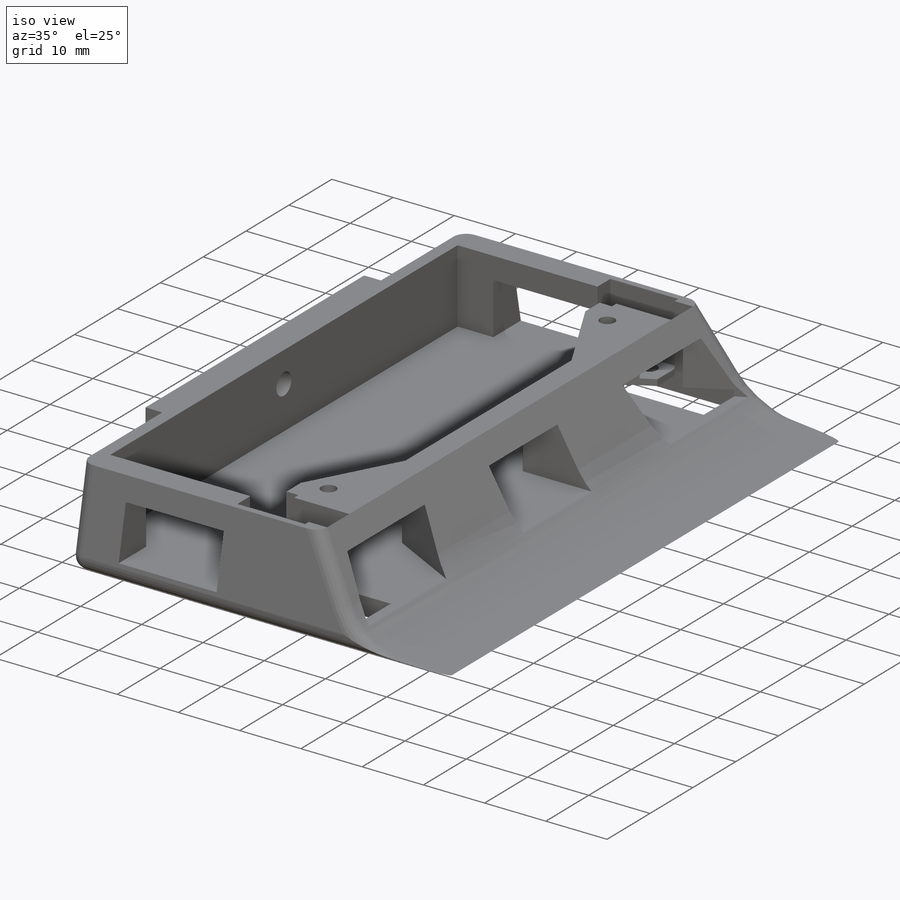
[diagram: iso view]
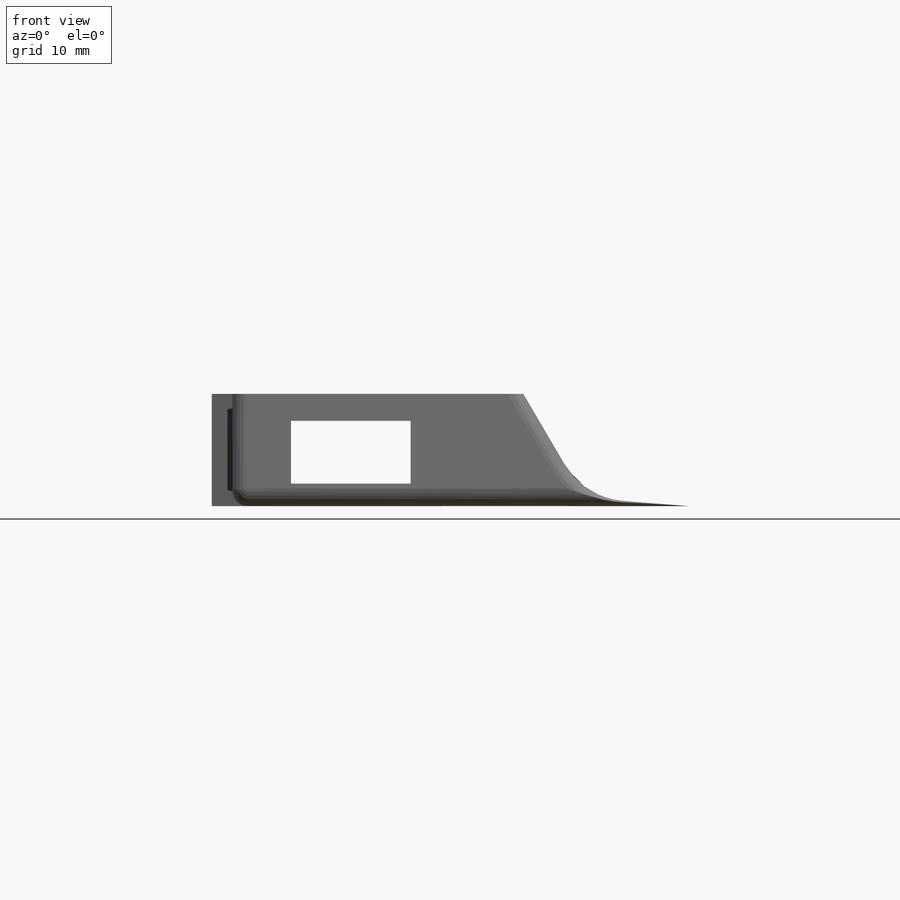
[diagram: front view]
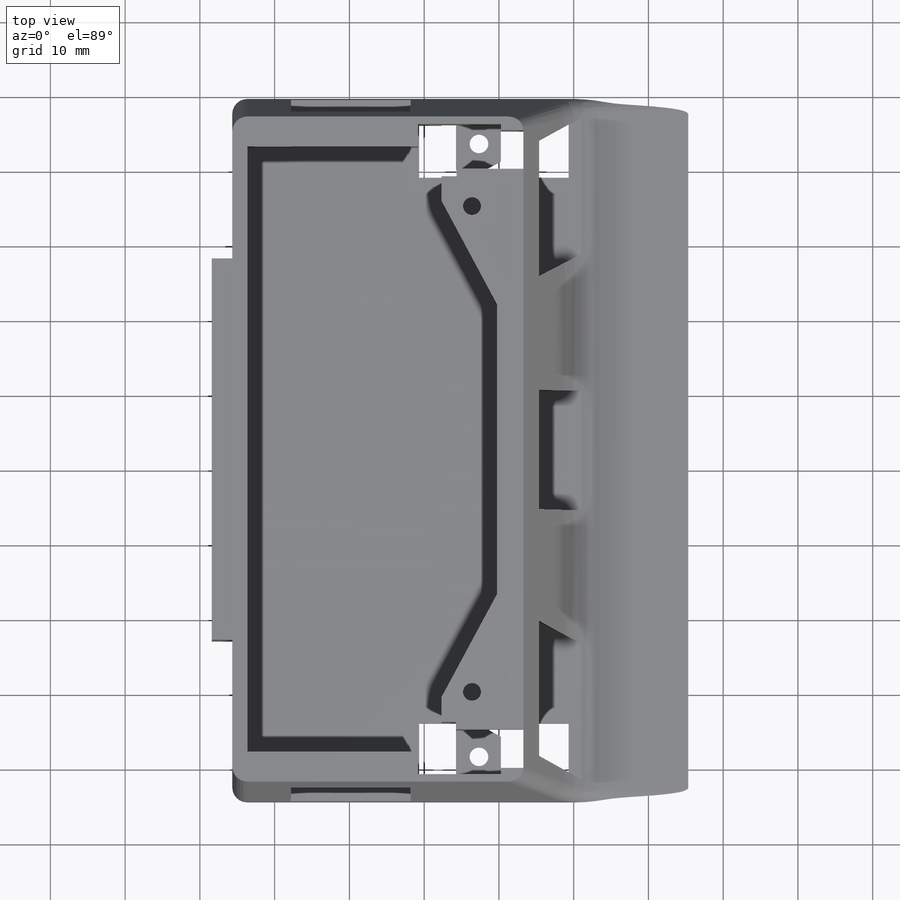
[diagram: top view]
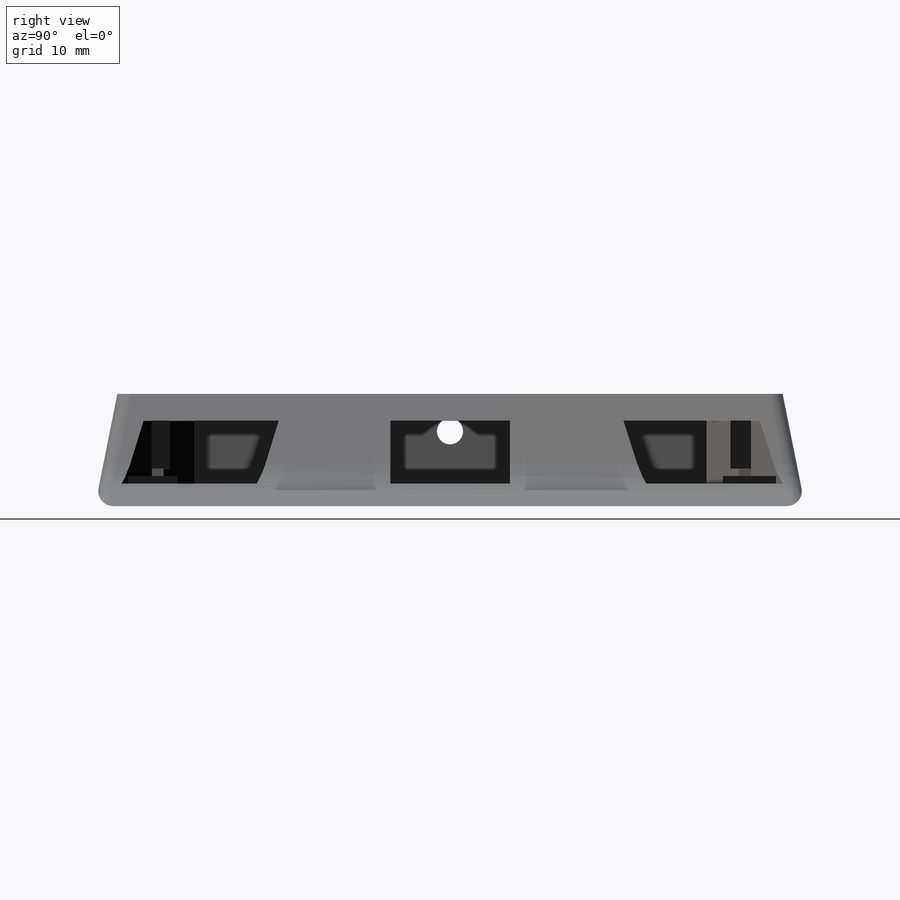
[diagram: right view]
SOLIDWORKS PART (.sldprt)
format: sldprt  version: not decoded by parser v0  size: 1,581,056 bytes
history: native  units: mm
features: sketch x63, cut_extrude x46, extrude x17, fillet x16, material x1, chamfer x1 (+12 scaffold rows collapsed)
feature tree (156):
  scaffold x12  (default folders/planes/origin — collapsed)
  material  "Material <not specified>"
  sketch  "Sketch1"  dims[D1=95.0mm D2=95.0mm]
  extrude  "Boss-Extrude1"  Depth=20mm
  sketch  "Sketch2"  dims[D1=15.0mm D2=8.4mm D3=40.0mm D4=40.0mm D5=3.0mm]
  cut_extrude  "Cut-Extrude1"  Depth=50mm
  sketch  "Sketch6"  dims[D1=25.0mm]
  cut_extrude  "Cut-Extrude3"  Depth=100mm
  fillet  "Fillet1"  Radius=10mm
  sketch  "Sketch7"  dims[D1=10.0mm D2=15.0mm D3=2.0mm D4=15.0mm D5=10.0mm D6=15.0mm D7=15.0mm D8=2.0mm]
  cut_extrude  "Cut-Extrude4"  Depth=17mm
  sketch  "Sketch8"  dims[D1=8.4mm]
  cut_extrude  "Cut-Extrude5"  Depth=4mm
  sketch  "Sketch9"  dims[D1=8.4mm]
  cut_extrude  "Cut-Extrude6"  Depth=4mm
  sketch  "Sketch10"
  cut_extrude  "Cut-Extrude7"  Depth=100mm
  sketch  "Sketch11"
  cut_extrude  "Cut-Extrude8"  Depth=100mm
  sketch  "Sketch12"  dims[D1=5.0mm]
  cut_extrude  "Cut-Extrude9"  Depth=100mm
  sketch  "Sketch14"  dims[D1=16.0mm]
  cut_extrude  "Cut-Extrude10"  Depth=100mm
  sketch  "Sketch15"  dims[D1=8.4mm D2=16.0mm]
  cut_extrude  "Cut-Extrude11"  Depth=100mm
  sketch  "Sketch16"  dims[D1=8.4mm D2=16.0mm D3=0.5mm D4=3.0mm]
  cut_extrude  "Cut-Extrude13"  Depth=100mm
  sketch  "Sketch19"  dims[c1.D1=15.0mm c1.D2=~16.706305mm c2.D1=16.0mm c2.D2=4.0mm c2.D3=0.0mm c2.D4=0.5mm c2.D5=4.0mm c2.D6=~5.702982mm c3.D3=16.0mm c3.D5=4.0mm c3.D6=2.0mm c3.D7=2.0mm]
  cut_extrude  "Cut-Extrude16"  Depth=12mm
  sketch  "Sketch21"  dims[D1=2.0mm]
  extrude  "Boss-Extrude2"  Depth=12mm
  sketch  "Sketch23"  dims[D1=2.0mm]
  extrude  "Boss-Extrude3"  Depth=12mm
  sketch  "Sketch24"  dims[D1=15.0mm D2=8.4mm D3=3.78mm D4=~4.999533mm]
  cut_extrude  "Cut-Extrude19"  Depth=100mm
  sketch  "Sketch26"  dims[D1=20.0mm]
  extrude  "Boss-Extrude4"  Depth=20mm
  sketch  "Sketch31"
  extrude  "Boss-Extrude6"  Depth=10mm
  sketch  "Sketch32"  dims[D1=12.5mm D2=16.5mm D3=10.75mm D4=3.0mm]
  cut_extrude  "Cut-Extrude22"  Depth=100mm
  sketch  "Sketch33"  dims[D1=3.0mm]
  cut_extrude  "Cut-Extrude23"  Depth=100mm
  sketch  "Sketch34"  dims[D1=3.0mm]
  cut_extrude  "Cut-Extrude24"  Depth=100mm
  sketch  "Sketch35"  dims[D1=34.0mm]
  cut_extrude  "Cut-Extrude25"  Depth=22mm
  sketch  "Sketch36"  dims[D1=34.0mm]
  cut_extrude  "Cut-Extrude26"  Depth=22mm
  sketch  "Sketch37"  dims[D1=15.0mm D2=15.0mm]
  cut_extrude  "Cut-Extrude28"  Depth=6mm
  sketch  "Sketch38"  dims[D1=5.0mm]
  cut_extrude  "Cut-Extrude29"  Depth=100mm
  chamfer  "Chamfer1"  Distance=5mm Angle=45deg
  sketch  "Sketch39"  dims[D1=2.0mm D2=4.0mm]
  cut_extrude  "Cut-Extrude30"  Depth=12mm
  fillet  "Fillet4"  Radius=5mm
  fillet  "Fillet5"  Radius=5mm
  sketch  "Sketch40"  dims[D1=2.0mm D2=2.0mm]
  cut_extrude  "Cut-Extrude31"  Depth=12mm
  fillet  "Fillet6"  Radius=5mm
  sketch  "Sketch46"  dims[D1=9.0mm D2=17.0mm D3=2.0mm D4=16.0mm D5=9.0mm D6=17.0mm D7=2.0mm D8=16.0mm]
  cut_extrude  "Cut-Extrude36"  Depth=4mm
  sketch  "Sketch47"  dims[c1.D1=~1.720276mm c1.D4=2.5mm c1.D5=2.5mm c2.D1=5.0mm c2.D2=4.5mm c2.D3=4.5mm c2.D6=4.5mm c2.D7=5.0mm]
  cut_extrude  "Cut-Extrude37"  Depth=100mm
  sketch  "Sketch48"  dims[D1=6.0mm D2=6.0mm D3=3.0mm D4=4.0mm D5=6.0mm D6=4.0mm D7=3.0mm D8=0.0mm]
  cut_extrude  "Cut-Extrude40"  Depth=10mm
  sketch  "Sketch49"
  cut_extrude  "Cut-Extrude41"  Depth=20mm
  sketch  "Sketch50"  dims[D1=9.0mm D2=3.0mm D3=9.0mm]
  cut_extrude  "Cut-Extrude42"  Depth=20mm
  sketch  "Sketch51"  dims[D1=3.0mm]
  extrude  "Boss-Extrude7"  Depth=2mm
  sketch  "Sketch52"  dims[D1=3.0mm]
  extrude  "Boss-Extrude8"  Depth=2mm
  sketch  "Sketch53"
  cut_extrude  "Cut-Extrude43"  Depth=12mm
  sketch  "Sketch54"
  cut_extrude  "Cut-Extrude44"  Depth=20mm
  sketch  "Sketch55"
  cut_extrude  "Cut-Extrude45"  Depth=20mm
  sketch  "Sketch56"  dims[D1=7.5mm D2=7.5mm D3=7.5mm D4=5.0mm D5=~5.817542mm D6=5.0mm]
  cut_extrude  "Cut-Extrude46"  Depth=10mm
  sketch  "Sketch57"  dims[D1=7.5mm D2=7.5mm D3=6.0mm D4=6.0mm]
  cut_extrude  "Cut-Extrude47"  Depth=10mm
  fillet  "Fillet11"  Radius=2mm
  sketch  "Sketch58"  dims[D1=65.0mm D2=5.0mm D3=5.0mm]
  cut_extrude  "Cut-Extrude48"  Depth=10mm
  sketch  "Sketch59"  dims[D1=16.0mm]
  cut_extrude  "Cut-Extrude49"  Depth=9090mm
  fillet  "Fillet14"  Radius=2mm
  fillet  "Fillet15"  Radius=2mm
  fillet  "Fillet16"  Radius=2mm
  fillet  "Fillet17"  Radius=2mm
  fillet  "Fillet18"  Radius=2mm
  fillet  "Fillet19"  Radius=2mm
  fillet  "Fillet20"  Radius=2mm
  sketch  "Sketch62"  dims[D1=3.0mm D2=3.0mm]
  cut_extrude  "Cut-Extrude51"  Depth=9090mm
  fillet  "Fillet21"  Radius=2mm
  fillet  "Fillet22"  Radius=2mm
  sketch  "Sketch63"  dims[D1=1.0mm D2=1.0mm]
  extrude  "Boss-Extrude9"  Depth=88mm
  sketch  "Sketch64"  dims[D1=4.0mm D2=4.0mm]
  cut_extrude  "Cut-Extrude52"  Depth=12mm
  sketch  "Sketch65"
  extrude  "Boss-Extrude10"  Depth=12mm
  sketch  "Sketch66"
  extrude  "Boss-Extrude11"  Depth=12mm
  fillet  "Fillet23"  Radius=2mm
  fillet  "Fillet24"  Radius=2mm
  sketch  "Sketch67"
  cut_extrude  "Cut-Extrude53"  Depth=50mm
  sketch  "Sketch68"
  extrude  "Boss-Extrude12"  Depth=12mm
  sketch  "Sketch69"  dims[D1=3.5mm D2=10.0mm D3=25.5mm D4=26.0mm]
  cut_extrude  "Cut-Extrude54"  Depth=12mm
  sketch  "Sketch72"  dims[D1=6.0mm]
  extrude  "Boss-Extrude13"  Depth=6mm
  sketch  "Sketch73"
  extrude  "Boss-Extrude14"  Depth=6mm
  sketch  "Sketch74"  dims[D1=3.5mm D2=3.0mm D3=3.0mm]
  cut_extrude  "Cut-Extrude57"  Depth=6mm
  sketch  "Sketch75"  dims[D1=3.5mm D2=3.0mm D3=3.0mm]
  cut_extrude  "Cut-Extrude58"  Depth=6mm
  sketch  "Sketch78"
  extrude  "Boss-Extrude19"  Depth=5mm
  sketch  "Sketch79"
  extrude  "Boss-Extrude20"  Depth=5mm
  sketch  "Sketch81"
  extrude  "Boss-Extrude21"  Depth=5mm
  sketch  "Sketch82"
  extrude  "Boss-Extrude22"  Depth=5mm
  sketch  "Sketch83"
  cut_extrude  "Cut-Extrude59"  [1 undecoded]
  sketch  "Sketch84"
  cut_extrude  "Cut-Extrude61"  Depth=10mm
  sketch  "Sketch86"
  cut_extrude  "Cut-Extrude62"  Depth=3mm
  sketch  "Sketch87"
  cut_extrude  "Cut-Extrude63"  Depth=3mm
  sketch  "Sketch96"
  cut_extrude  "Cut-Extrude74"  Depth=20mm
  sketch  "Sketch97"
  cut_extrude  "Cut-Extrude75"  Depth=20mm
decode coverage: 120 of 143 modeling features carry decoded parameters
note: ~ marks probable driven/reference dimensions
note: 1 parameter value undecoded
note: suppression state not decoded; provenance and decode notes live in map.json
